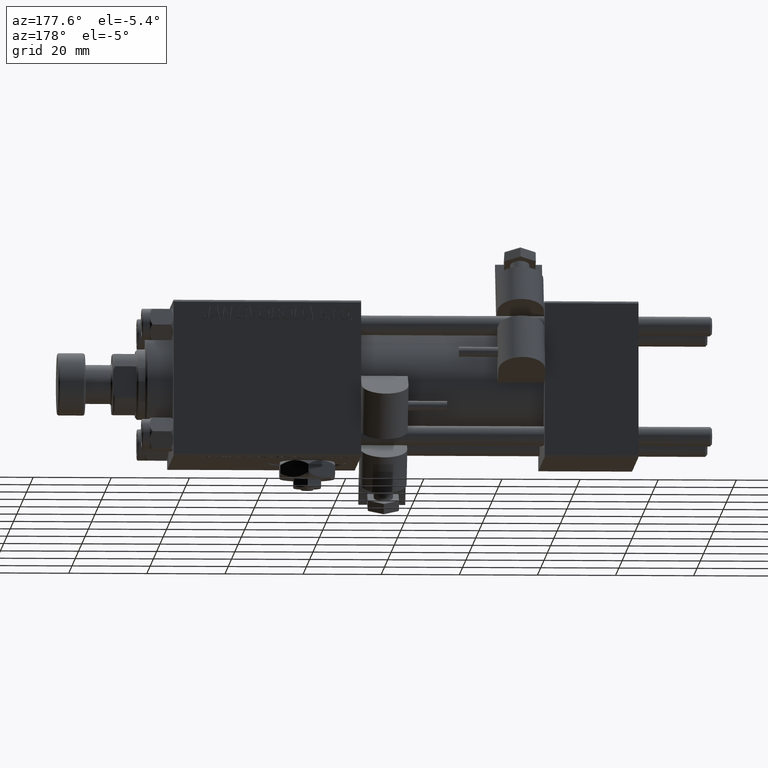
[diagram: clean part render]
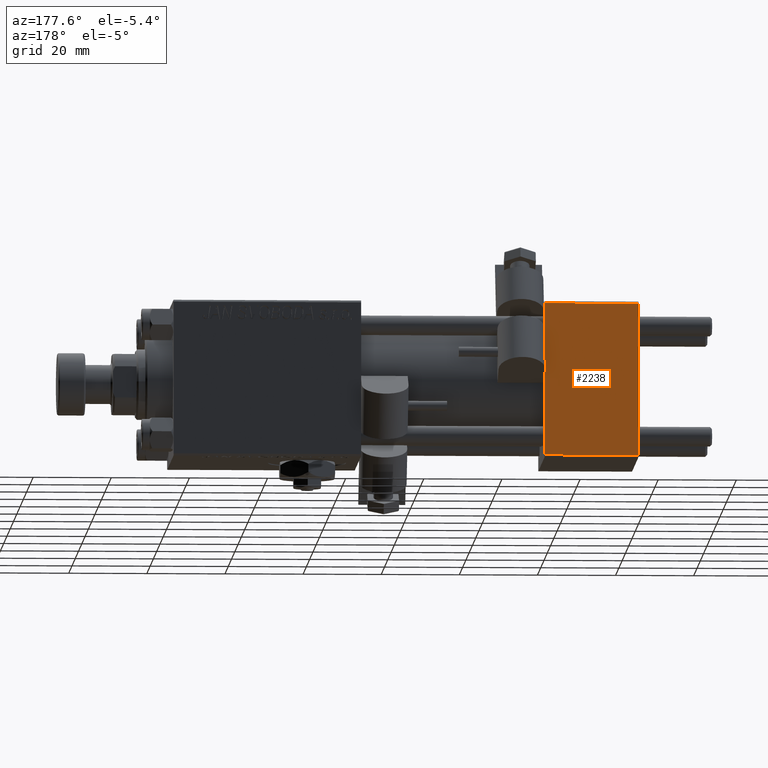
[diagram: same view with one face highlighted and labeled with its STEP entity id]
A machine part, auxiliary view. The second image highlights one B-rep face of the part: STEP entity #2238.
In plain terms, the highlighted planar face has unit normal (0, 1, 0).
Its self-contained STEP definition (entity closure, byte-faithful):
#18 = DIRECTION ( 'NONE',  ( 0.000000000000000000, 0.000000000000000000, -1.000000000000000000 ) ) ;
#582 = CARTESIAN_POINT ( 'NONE',  ( 24.00000000000000000, 20.00000000000000000, -19.50000000000002132 ) ) ;
#827 = CARTESIAN_POINT ( 'NONE',  ( 24.00000000000000000, 20.00000000000000000, 20.00000000000000000 ) ) ;
#2238 = ADVANCED_FACE ( 'NONE', ( #9674 ), #9130, .T. ) ;
#5712 = EDGE_CURVE ( 'NONE', #19752, #22820, #49384, .T. ) ;
#7344 = LINE ( 'NONE', #10316, #8265 ) ;
#8265 = VECTOR ( 'NONE', #47090, 1000.000000000000000 ) ;
#9130 = PLANE ( 'NONE',  #41277 ) ;
#9271 = ORIENTED_EDGE ( 'NONE', *, *, #18585, .T. ) ;
#9674 = FACE_OUTER_BOUND ( 'NONE', #34929, .T. ) ;
#10316 = CARTESIAN_POINT ( 'NONE',  ( 24.00000000000000000, 20.00000000000000000, 20.00000000000000000 ) ) ;
#12897 = CARTESIAN_POINT ( 'NONE',  ( 0.000000000000000000, 20.00000000000000000, 20.00000000000000000 ) ) ;
#13723 = LINE ( 'NONE', #18022, #24649 ) ;
#14450 = CARTESIAN_POINT ( 'NONE',  ( 0.000000000000000000, 20.00000000000000000, 19.49999999999999289 ) ) ;
#15473 = CARTESIAN_POINT ( 'NONE',  ( 24.00000000000000000, 20.00000000000000000, -19.50000000000002132 ) ) ;
#18022 = CARTESIAN_POINT ( 'NONE',  ( 24.00000000000000000, 20.00000000000000000, 19.49999999999999289 ) ) ;
#18084 = VERTEX_POINT ( 'NONE', #51496 ) ;
#18585 = EDGE_CURVE ( 'NONE', #18084, #36786, #7344, .T. ) ;
#19752 = VERTEX_POINT ( 'NONE', #14450 ) ;
#21499 = DIRECTION ( 'NONE',  ( 1.000000000000000000, 0.000000000000000000, 0.000000000000000000 ) ) ;
#22820 = VERTEX_POINT ( 'NONE', #48429 ) ;
#24649 = VECTOR ( 'NONE', #21499, 1000.000000000000000 ) ;
#25523 = DIRECTION ( 'NONE',  ( -0.000000000000000000, 1.000000000000000000, 0.000000000000000000 ) ) ;
#28391 = EDGE_CURVE ( 'NONE', #36786, #22820, #31591, .T. ) ;
#29046 = ORIENTED_EDGE ( 'NONE', *, *, #35837, .T. ) ;
#29818 = DIRECTION ( 'NONE',  ( 0.000000000000000000, -0.000000000000000000, 1.000000000000000000 ) ) ;
#31591 = LINE ( 'NONE', #15473, #50062 ) ;
#31633 = ORIENTED_EDGE ( 'NONE', *, *, #5712, .F. ) ;
#34929 = EDGE_LOOP ( 'NONE', ( #9271, #46914, #31633, #29046 ) ) ;
#35837 = EDGE_CURVE ( 'NONE', #19752, #18084, #13723, .T. ) ;
#36786 = VERTEX_POINT ( 'NONE', #582 ) ;
#41277 = AXIS2_PLACEMENT_3D ( 'NONE', #827, #25523, #29818 ) ;
#46544 = VECTOR ( 'NONE', #18, 1000.000000000000000 ) ;
#46914 = ORIENTED_EDGE ( 'NONE', *, *, #28391, .T. ) ;
#47090 = DIRECTION ( 'NONE',  ( 0.000000000000000000, 0.000000000000000000, -1.000000000000000000 ) ) ;
#48429 = CARTESIAN_POINT ( 'NONE',  ( 0.000000000000000000, 20.00000000000000000, -19.50000000000002132 ) ) ;
#49384 = LINE ( 'NONE', #12897, #46544 ) ;
#50062 = VECTOR ( 'NONE', #52229, 1000.000000000000000 ) ;
#51496 = CARTESIAN_POINT ( 'NONE',  ( 24.00000000000000000, 20.00000000000000000, 19.49999999999999289 ) ) ;
#52229 = DIRECTION ( 'NONE',  ( -1.000000000000000000, 0.000000000000000000, 0.000000000000000000 ) ) ;